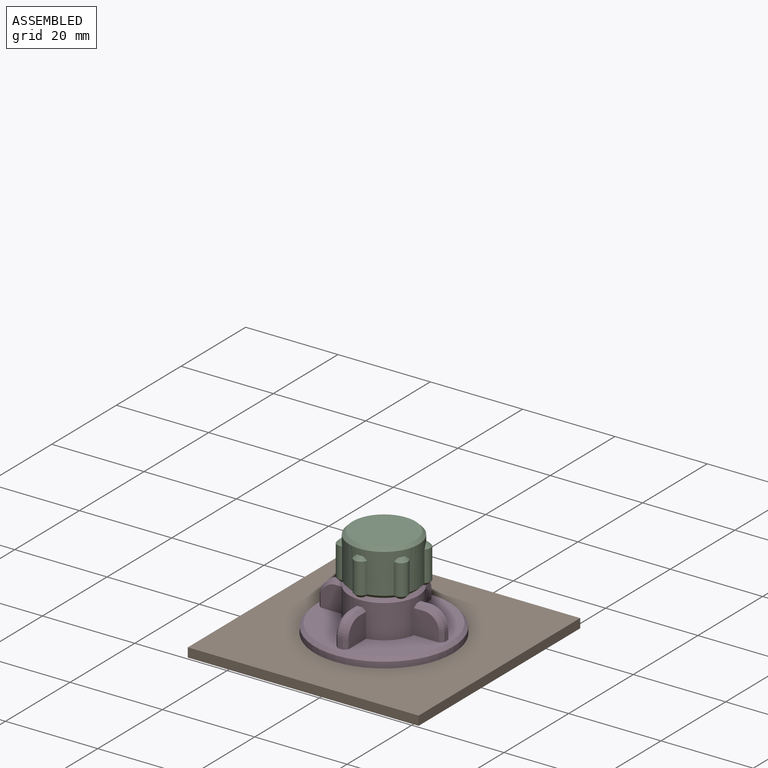
[diagram: assembled view]
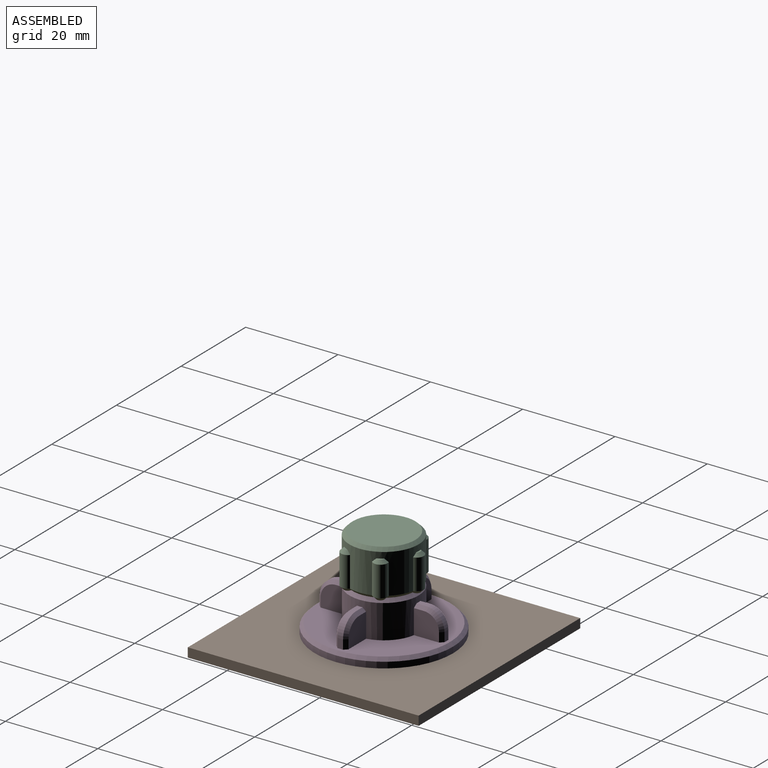
[diagram: assembled view, second angle]
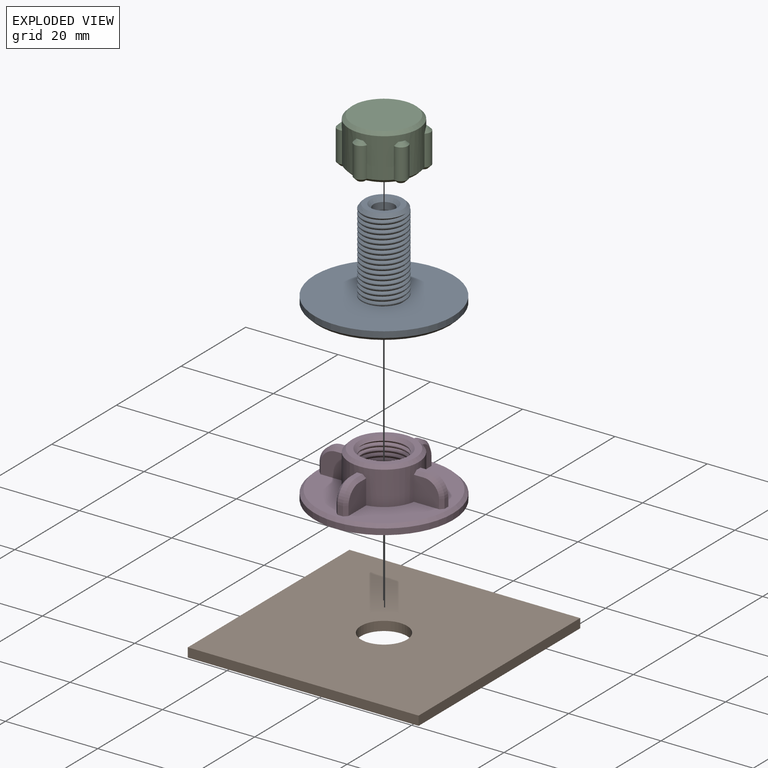
[diagram: exploded view]
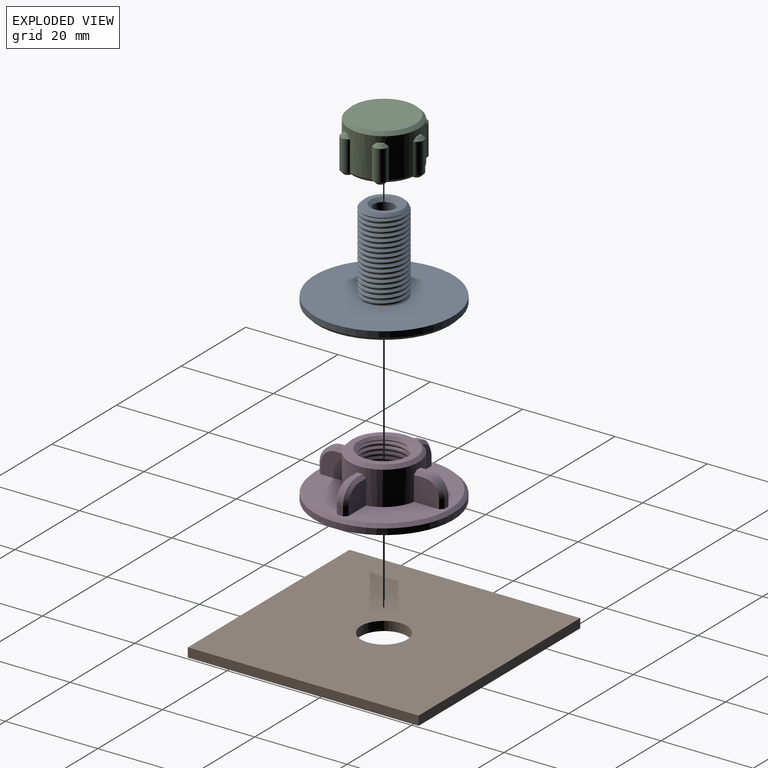
[diagram: exploded view, second angle]
ASSEMBLY  parts=4 mates=3
PART A: 12 faces, bbox 30.3x30.3x20.5 mm
  f0: cylinder r=4.75mm len=17.3mm, axis (0,0,-1), area 123.6mm2, adj f3,f4,f5,f8
  f1: cylinder r=2.25mm len=18.6mm, axis (0,0,-1), area 263mm2, adj f9,f10
  f2: plane 8.1x8.1mm, normal (0,0,1), area 24.2mm2, adj f3,f9
  f3: cone r=4.05mm half-angle=45deg, axis (0,0,-1), area 20.8mm2, adj f0,f2,f4,f5
  f4: bspline ~18.73x10.97mm, area 284.2mm2, adj f0,f3,f5,f8
  f5: bspline ~18.4x10.97mm, area 283mm2, adj f0,f3,f4,f8
  f6: cylinder r=15mm len=30mm, axis (0,0,-1), area 122.5mm2, adj f8,f11
  f7: plane 28.6x28.6mm, normal (0,0,-1), area 615.1mm2, adj f10,f11
  f8: plane 30.29x30.29mm, normal (0,0,1), area 640.6mm2, adj f0,f4,f5,f6
  f9: cone r=2.25mm half-angle=45deg, axis (0,0,1), area 16.2mm2, adj f1,f2
  f10: cone r=2.25mm half-angle=45deg, axis (0,0,-1), area 16.2mm2, adj f1,f7
  f11: cone r=15mm half-angle=45deg, axis (0,0,1), area 91.1mm2, adj f6,f7
PART B: 7 faces, bbox 50x50x2 mm
  f0: plane 50x2mm, normal (-1,0,0), area 100mm2, adj f1,f3,f5,f6
  f1: plane 50x2mm, normal (0,-1,0), area 100mm2, adj f0,f2,f5,f6
  f2: plane 50x2mm, normal (1,0,0), area 100mm2, adj f1,f3,f5,f6
  f3: plane 50x2mm, normal (0,1,0), area 100mm2, adj f0,f2,f5,f6
  f4: cylinder r=5mm len=10mm, axis (0,0,-1), area 62.8mm2, adj f5,f6
  f5: plane 50x50mm, normal (0,0,1), area 2421.5mm2, adj f0,f1,f2,f3,f4
  f6: plane 50x50mm, normal (0,0,-1), area 2421.5mm2, adj f0,f1,f2,f3,f4
PART C: 40 faces, bbox 15.6x17.5x10.7 mm
  f0: cylinder r=7.5mm len=15mm, axis (0,0,-1), area 277.3mm2, adj f8,f9,f10,f11,f12,f13,f14,f15
  f1: cylinder r=4.75mm len=9.5mm, axis (0,0,-1), area 38.9mm2, adj f2,f3,f6,f7
  f2: bspline ~11.89x10.3mm, area 131.8mm2, adj f1,f3,f6,f7
  f3: bspline ~11.89x10.3mm, area 127.9mm2, adj f1,f2,f6,f7
  f4: plane 13.6x13.6mm, normal (0,0,1), area 145.3mm2, adj f33
  f5: plane 15.79x13.89mm, normal (0,0,-1), area 50.8mm2, adj f20,f21,f22,f23,f24,f25,f26,f27
  f6: cone r=5.45mm half-angle=45deg, axis (0,0,-1), area 15mm2, adj f1,f2,f3,f32
  f7: plane 10.18x10.09mm, normal (0,0,-1), area 75.8mm2, adj f1,f2,f3
  f8: cylinder r=1.51mm len=6.6mm, axis (0,0,-1), area 27.8mm2, adj f0,f26,f39
  f9: plane 1.43x0.43mm, normal (0,0,1), area 0.4mm2, adj f0,f39
  f10: cylinder r=1.51mm len=6.6mm, axis (0,0,-1), area 27.8mm2, adj f0,f22,f38
  f11: plane 1.24x0.84mm, normal (0,0,1), area 0.4mm2, adj f0,f38
  f12: cylinder r=1.51mm len=6.6mm, axis (0,0,-1), area 27.8mm2, adj f0,f21,f37
  f13: plane 1.24x0.84mm, normal (0,0,1), area 0.4mm2, adj f0,f37
  f14: cylinder r=1.51mm len=6.6mm, axis (0,0,-1), area 27.8mm2, adj f0,f25,f36
  f15: plane 1.43x0.43mm, normal (0,0,1), area 0.4mm2, adj f0,f36
  f16: cylinder r=1.51mm len=6.6mm, axis (0,0,-1), area 27.8mm2, adj f0,f29,f35
  f17: plane 1.24x0.84mm, normal (0,0,1), area 0.4mm2, adj f0,f35
  f18: cylinder r=1.51mm len=6.6mm, axis (0,0,-1), area 27.8mm2, adj f0,f30,f34
  f19: plane 1.24x0.84mm, normal (0,0,1), area 0.4mm2, adj f0,f34
  f20: cone r=7.5mm half-angle=45deg, axis (0,0,1), area 5.2mm2, adj f0,f5,f21,f22
  f21: cone r=1.51mm half-angle=45deg, axis (0,0,1), area 3.8mm2, adj f5,f12,f20,f23
  f22: cone r=1.51mm half-angle=45deg, axis (0,0,1), area 3.8mm2, adj f5,f10,f20,f24
  f23: cone r=7.5mm half-angle=45deg, axis (0,0,1), area 5.2mm2, adj f0,f5,f21,f25
  f24: cone r=7.5mm half-angle=45deg, axis (0,0,1), area 5.2mm2, adj f0,f5,f22,f26
  f25: cone r=1.51mm half-angle=45deg, axis (0,0,1), area 3.8mm2, adj f5,f14,f23,f27
  f26: cone r=1.51mm half-angle=45deg, axis (0,0,1), area 3.8mm2, adj f5,f8,f24,f28
  f27: cone r=7.5mm half-angle=45deg, axis (0,0,1), area 5.2mm2, adj f0,f5,f25,f29
  f28: cone r=7.5mm half-angle=45deg, axis (0,0,1), area 5.2mm2, adj f0,f5,f26,f30
  f29: cone r=1.51mm half-angle=45deg, axis (0,0,1), area 3.8mm2, adj f5,f16,f27,f31
  f30: cone r=1.51mm half-angle=45deg, axis (0,0,1), area 3.8mm2, adj f5,f18,f28,f31
  f31: cone r=7.5mm half-angle=45deg, axis (0,0,1), area 5.2mm2, adj f0,f5,f29,f30
  f32: cone r=5.74mm half-angle=67.5deg, axis (0,0,-1), area 18.5mm2, adj f5,f6
  f33: cone r=6.8mm half-angle=45deg, axis (0,0,-1), area 44.5mm2, adj f0,f4
  f34: cone r=0.81mm half-angle=45deg, axis (0,0,-1), area 2.9mm2, adj f0,f18,f19
  f35: cone r=0.81mm half-angle=45deg, axis (0,0,-1), area 2.9mm2, adj f0,f16,f17
  f36: cone r=0.81mm half-angle=45deg, axis (0,0,-1), area 2.9mm2, adj f0,f14,f15
  f37: cone r=0.81mm half-angle=45deg, axis (0,0,-1), area 2.9mm2, adj f0,f12,f13
  f38: cone r=0.81mm half-angle=45deg, axis (0,0,-1), area 2.9mm2, adj f0,f10,f11
  f39: cone r=0.81mm half-angle=45deg, axis (0,0,-1), area 2.9mm2, adj f0,f8,f9
PART D: 56 faces, bbox 30x30x10.5 mm
  f0: cylinder r=4.75mm len=9.5mm, axis (0,0,-1), area 61.8mm2, adj f4,f5,f6,f7
  f1: cylinder r=7.5mm len=15mm, axis (0,0,-1), area 283.3mm2, adj f9,f10,f11,f13,f14,f15,f17,f18
  f2: plane 13.6x13.6mm, normal (0,0,1), area 52mm2, adj f4,f54
  f3: plane 30x30mm, normal (0,0,-1), area 613.5mm2, adj f5,f8
  f4: cone r=4.75mm half-angle=45deg, axis (0,0,1), area 24.8mm2, adj f0,f2,f6,f7
  f5: cone r=5.45mm half-angle=45deg, axis (0,0,-1), area 24.8mm2, adj f0,f3,f6,f7
  f6: bspline ~11.89x10.3mm, area 159.1mm2, adj f0,f4,f5,f7
  f7: bspline ~11.89x10.3mm, area 158.8mm2, adj f0,f4,f5,f6
  f8: cylinder r=15mm len=30mm, axis (0,0,-1), area 122.5mm2, adj f3,f55
  f9: plane 28.6x28.6mm, normal (0,0,1), area 404.5mm2, adj f1,f10,f11,f12,f14,f15,f16,f18
  f10: plane 5.45x5.3mm, normal (0,-1,0), area 26.5mm2, adj f1,f9,f51,f52,f53
  f11: plane 5.45x5.3mm, normal (0,1,0), area 26.5mm2, adj f1,f9,f48,f49,f50
  f12: plane 2x1.2mm, normal (1,0,0), area 2.4mm2, adj f9,f28,f48,f53
  f13: plane 2.06x1.2mm, normal (0,0,1), area 2.4mm2, adj f1,f28,f50,f51
  f14: plane 5.45x5.3mm, normal (0,1,0), area 26.5mm2, adj f1,f9,f36,f37,f38
  f15: plane 5.45x5.3mm, normal (0,-1,0), area 26.5mm2, adj f1,f9,f39,f40,f41
  f16: plane 2x1.2mm, normal (-1,0,0), area 2.4mm2, adj f9,f29,f38,f39
  f17: plane 2.06x1.2mm, normal (0,0,1), area 2.4mm2, adj f1,f29,f36,f41
  f18: plane 5.45x5.3mm, normal (-1,0,0), area 26.5mm2, adj f1,f9,f33,f34,f35
  f19: plane 5.45x5.3mm, normal (1,0,0), area 26.5mm2, adj f1,f9,f30,f31,f32
  f20: plane 2x1.2mm, normal (0,-1,0), area 2.4mm2, adj f9,f26,f30,f35
  f21: plane 2.06x1.2mm, normal (0,0,1), area 2.4mm2, adj f1,f26,f32,f33
  f22: plane 5.45x5.3mm, normal (1,0,0), area 26.5mm2, adj f1,f9,f42,f43,f44
  f23: plane 5.45x5.3mm, normal (-1,0,0), area 26.5mm2, adj f1,f9,f45,f46,f47
  f24: plane 2x1.2mm, normal (0,1,0), area 2.4mm2, adj f9,f27,f44,f45
  f25: plane 2.06x1.2mm, normal (0,0,1), area 2.4mm2, adj f1,f27,f42,f47
  f26: cylinder r=4mm len=4mm, axis (1,0,0), area 7.5mm2, adj f20,f21,f31,f34
  f27: cylinder r=4mm len=4mm, axis (-1,0,0), area 7.5mm2, adj f24,f25,f43,f46
  f28: cylinder r=4mm len=4mm, axis (0,1,0), area 7.5mm2, adj f12,f13,f49,f52
  f29: cylinder r=4mm len=4mm, axis (0,-1,0), area 7.5mm2, adj f16,f17,f37,f40
  f30: plane 2x0.7mm, normal (0.71,-0.71,0), area 2mm2, adj f9,f19,f20,f31
  f31: cone r=3.3mm half-angle=45deg, axis (-1,0,0), area 5.7mm2, adj f19,f26,f30,f32
  f32: plane 2.15x0.7mm, normal (0.71,0,0.71), area 2.1mm2, adj f1,f19,f21,f31
  f33: plane 2.15x0.7mm, normal (-0.71,0,0.71), area 2.1mm2, adj f1,f18,f21,f34
  f34: cone r=3.3mm half-angle=45deg, axis (1,0,0), area 5.7mm2, adj f18,f26,f33,f35
  f35: plane 2x0.7mm, normal (-0.71,-0.71,0), area 2mm2, adj f9,f18,f20,f34
  f36: plane 2.15x0.7mm, normal (0,0.71,0.71), area 2.1mm2, adj f1,f14,f17,f37
  f37: cone r=3.3mm half-angle=45deg, axis (0,-1,0), area 5.7mm2, adj f14,f29,f36,f38
  f38: plane 2x0.7mm, normal (-0.71,0.71,0), area 2mm2, adj f9,f14,f16,f37
  f39: plane 2x0.7mm, normal (-0.71,-0.71,0), area 2mm2, adj f9,f15,f16,f40
  f40: cone r=3.3mm half-angle=45deg, axis (0,1,0), area 5.7mm2, adj f15,f29,f39,f41
  f41: plane 2.15x0.7mm, normal (0,-0.71,0.71), area 2.1mm2, adj f1,f15,f17,f40
  f42: plane 2.15x0.7mm, normal (0.71,0,0.71), area 2.1mm2, adj f1,f22,f25,f43
  f43: cone r=3.3mm half-angle=45deg, axis (-1,0,0), area 5.7mm2, adj f22,f27,f42,f44
  f44: plane 2x0.7mm, normal (0.71,0.71,0), area 2mm2, adj f9,f22,f24,f43
  f45: plane 2x0.7mm, normal (-0.71,0.71,0), area 2mm2, adj f9,f23,f24,f46
  f46: cone r=3.3mm half-angle=45deg, axis (1,0,0), area 5.7mm2, adj f23,f27,f45,f47
  f47: plane 2.15x0.7mm, normal (-0.71,0,0.71), area 2.1mm2, adj f1,f23,f25,f46
  f48: plane 2x0.7mm, normal (0.71,0.71,0), area 2mm2, adj f9,f11,f12,f49
  f49: cone r=3.3mm half-angle=45deg, axis (0,-1,0), area 5.7mm2, adj f11,f28,f48,f50
  f50: plane 2.15x0.7mm, normal (0,0.71,0.71), area 2.1mm2, adj f1,f11,f13,f49
  f51: plane 2.15x0.7mm, normal (0,-0.71,0.71), area 2.1mm2, adj f1,f10,f13,f52
  f52: cone r=3.3mm half-angle=45deg, axis (0,1,0), area 5.7mm2, adj f10,f28,f51,f53
  f53: plane 2x0.7mm, normal (0.71,-0.71,0), area 2mm2, adj f9,f10,f12,f52
  f54: cone r=6.8mm half-angle=45deg, axis (0,0,-1), area 44.5mm2, adj f1,f2
  f55: cone r=14.3mm half-angle=45deg, axis (0,0,-1), area 91.1mm2, adj f8,f9
PLACE A t=(-0.02,0,-12)mm
PLACE B at identity
PLACE C t=(0,0,12)mm
PLACE D t=(0,0,2)mm
MATE fastened C.f1 <-> D.f8  axis (0,0,-1) through (0,0,12)mm
MATE fastened D.f8 <-> B.f4  axis (0,0,-1) through (0,0,2)mm
MATE fastened B.f4 <-> A.f8  axis (0,0,-1) through (0,0,0)mm
